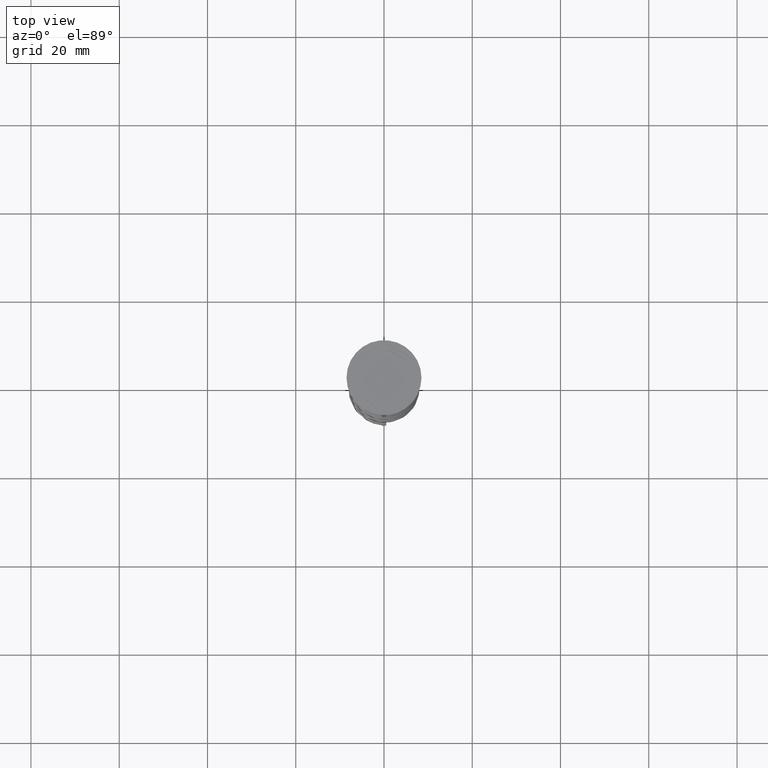
[diagram: clean part render]
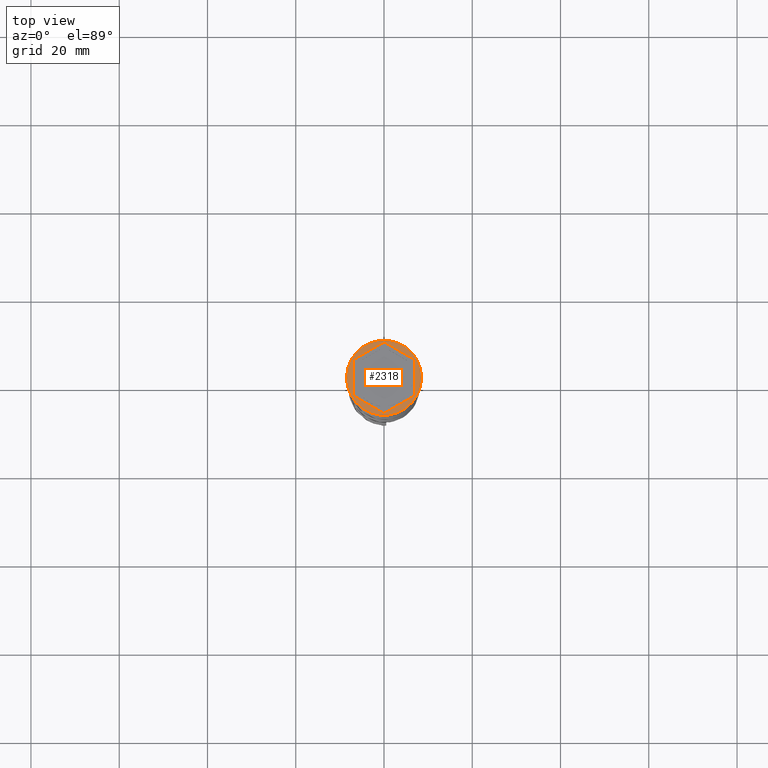
[diagram: same view with one face highlighted and labeled with its STEP entity id]
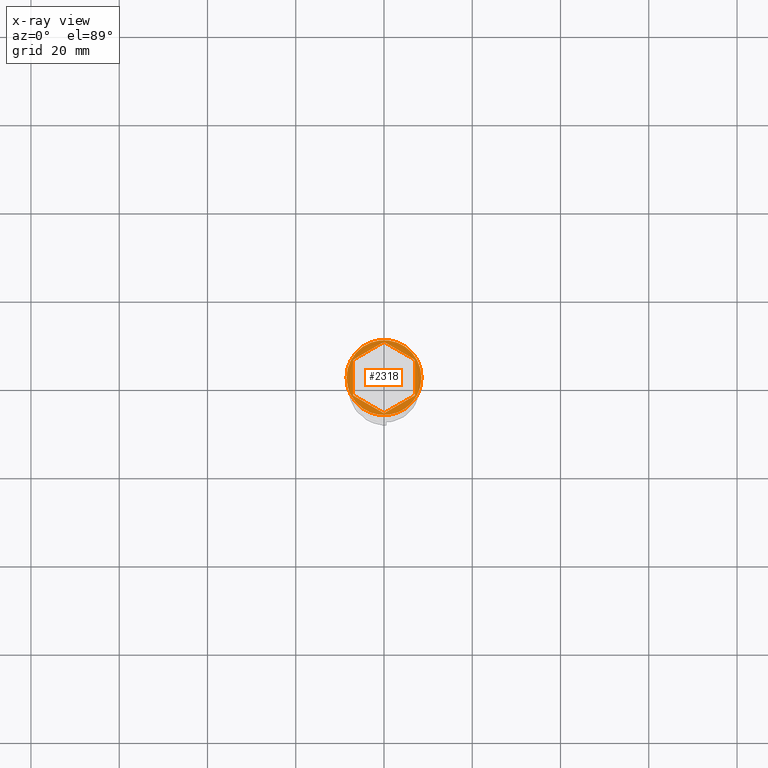
[diagram: x-ray of the same camera — body ghosted, the highlighted face saturated]
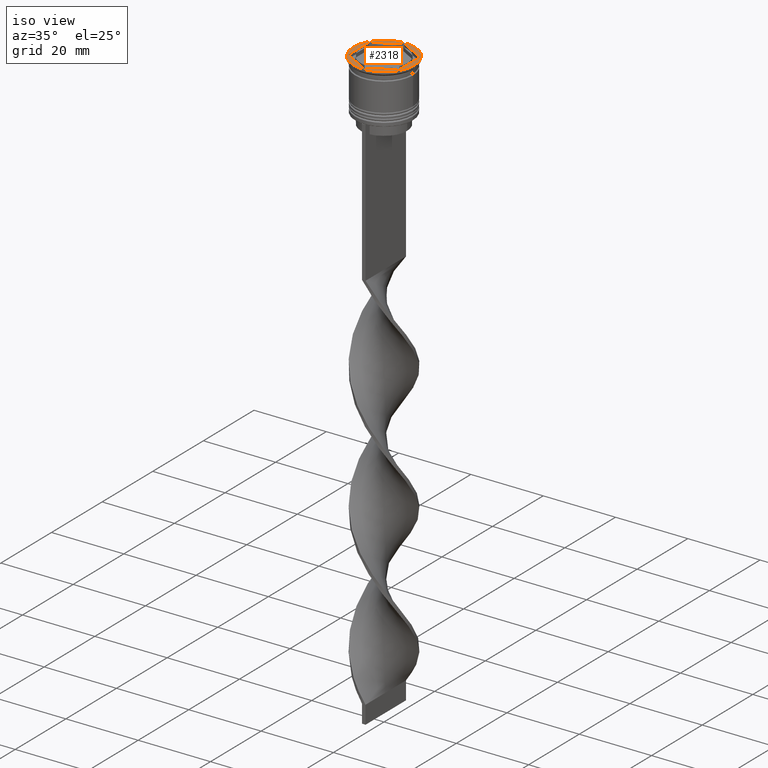
[diagram: same view with one face highlighted and labeled with its STEP entity id]
A machine part, top view. The second image highlights one B-rep face of the part: STEP entity #2318.
The next image is the same camera in x-ray: the body ghosted, the highlighted face saturated — about 0% of this face is hidden behind the body in this view.
A second angle (iso view) of the same face is appended — the face is thin or edge-on in the first view.
In plain terms, the highlighted planar face has unit normal (0, -0, 1).
Its self-contained STEP definition (entity closure, byte-faithful):
#3 = CARTESIAN_POINT ( 'NONE',  ( 7.000000000000000888, 4.041451884327382338, 0.000000000000000000 ) ) ;
#114 = CARTESIAN_POINT ( 'NONE',  ( 2.174016704710901386E-15, -8.082903768654762899, 0.000000000000000000 ) ) ;
#164 = VERTEX_POINT ( 'NONE', #2694 ) ;
#213 = CARTESIAN_POINT ( 'NONE',  ( 7.000000000000000888, 4.041451884327382338, 0.000000000000000000 ) ) ;
#224 = LINE ( 'NONE', #2823, #886 ) ;
#236 = DIRECTION ( 'NONE',  ( -0.000000000000000000, -0.000000000000000000, 1.000000000000000000 ) ) ;
#386 = DIRECTION ( 'NONE',  ( 1.000000000000000000, 0.000000000000000000, 0.000000000000000000 ) ) ;
#391 = LINE ( 'NONE', #2416, #3117 ) ;
#422 = FACE_BOUND ( 'NONE', #1586, .T. ) ;
#462 = AXIS2_PLACEMENT_3D ( 'NONE', #2736, #1571, #386 ) ;
#609 = VERTEX_POINT ( 'NONE', #3046 ) ;
#636 = EDGE_LOOP ( 'NONE', ( #3606, #2610 ) ) ;
#725 = PLANE ( 'NONE',  #462 ) ;
#766 = VERTEX_POINT ( 'NONE', #2159 ) ;
#777 = CARTESIAN_POINT ( 'NONE',  ( 0.000000000000000000, 0.000000000000000000, 0.000000000000000000 ) ) ;
#841 = ORIENTED_EDGE ( 'NONE', *, *, #1210, .F. ) ;
#851 = ORIENTED_EDGE ( 'NONE', *, *, #2251, .F. ) ;
#886 = VECTOR ( 'NONE', #1072, 1000.000000000000000 ) ;
#970 = EDGE_CURVE ( 'NONE', #2560, #164, #391, .T. ) ;
#1064 = LINE ( 'NONE', #2249, #2096 ) ;
#1072 = DIRECTION ( 'NONE',  ( 0.000000000000000000, -1.000000000000000000, 0.000000000000000000 ) ) ;
#1209 = EDGE_CURVE ( 'NONE', #2612, #2560, #3685, .T. ) ;
#1210 = EDGE_CURVE ( 'NONE', #2594, #1446, #1064, .T. ) ;
#1271 = FACE_OUTER_BOUND ( 'NONE', #636, .T. ) ;
#1337 = DIRECTION ( 'NONE',  ( -0.000000000000000000, -0.000000000000000000, 1.000000000000000000 ) ) ;
#1387 = DIRECTION ( 'NONE',  ( 0.8660254037844387076, -0.4999999999999997224, 0.000000000000000000 ) ) ;
#1418 = VERTEX_POINT ( 'NONE', #2458 ) ;
#1446 = VERTEX_POINT ( 'NONE', #114 ) ;
#1454 = DIRECTION ( 'NONE',  ( 0.8660254037844384856, 0.5000000000000001110, 0.000000000000000000 ) ) ;
#1496 = VECTOR ( 'NONE', #2555, 1000.000000000000000 ) ;
#1571 = DIRECTION ( 'NONE',  ( 0.000000000000000000, -0.000000000000000000, 1.000000000000000000 ) ) ;
#1586 = EDGE_LOOP ( 'NONE', ( #2934, #3582, #2429, #841, #851, #3719 ) ) ;
#1683 = CIRCLE ( 'NONE', #2098, 8.500000000000000000 ) ;
#1701 = EDGE_CURVE ( 'NONE', #609, #766, #1683, .T. ) ;
#1877 = EDGE_CURVE ( 'NONE', #1446, #1418, #2031, .T. ) ;
#2031 = LINE ( 'NONE', #2320, #3429 ) ;
#2041 = VECTOR ( 'NONE', #3662, 1000.000000000000114 ) ;
#2096 = VECTOR ( 'NONE', #1387, 1000.000000000000114 ) ;
#2098 = AXIS2_PLACEMENT_3D ( 'NONE', #777, #1337, #2208 ) ;
#2159 = CARTESIAN_POINT ( 'NONE',  ( -8.500000000000000000, 1.040949779275250140E-15, 0.000000000000000000 ) ) ;
#2208 = DIRECTION ( 'NONE',  ( 1.000000000000000000, 0.000000000000000000, 0.000000000000000000 ) ) ;
#2246 = CARTESIAN_POINT ( 'NONE',  ( 7.000000000000000000, -4.041451884327381450, 0.000000000000000000 ) ) ;
#2249 = CARTESIAN_POINT ( 'NONE',  ( -7.000000000000000888, -4.041451884327381450, 0.000000000000000000 ) ) ;
#2251 = EDGE_CURVE ( 'NONE', #164, #2594, #224, .T. ) ;
#2284 = CIRCLE ( 'NONE', #2391, 8.500000000000000000 ) ;
#2318 = ADVANCED_FACE ( 'NONE', ( #422, #1271 ), #725, .T. ) ;
#2320 = CARTESIAN_POINT ( 'NONE',  ( 2.174016704710901386E-15, -8.082903768654762899, 0.000000000000000000 ) ) ;
#2391 = AXIS2_PLACEMENT_3D ( 'NONE', #3057, #236, #2545 ) ;
#2416 = CARTESIAN_POINT ( 'NONE',  ( 0.000000000000000000, 8.082903768654762899, 0.000000000000000000 ) ) ;
#2429 = ORIENTED_EDGE ( 'NONE', *, *, #1877, .F. ) ;
#2458 = CARTESIAN_POINT ( 'NONE',  ( 7.000000000000000000, -4.041451884327381450, 0.000000000000000000 ) ) ;
#2545 = DIRECTION ( 'NONE',  ( 1.000000000000000000, 0.000000000000000000, 0.000000000000000000 ) ) ;
#2555 = DIRECTION ( 'NONE',  ( 1.073081856240827703E-16, 1.000000000000000000, 0.000000000000000000 ) ) ;
#2560 = VERTEX_POINT ( 'NONE', #3153 ) ;
#2594 = VERTEX_POINT ( 'NONE', #3741 ) ;
#2610 = ORIENTED_EDGE ( 'NONE', *, *, #2659, .T. ) ;
#2612 = VERTEX_POINT ( 'NONE', #3 ) ;
#2659 = EDGE_CURVE ( 'NONE', #766, #609, #2284, .T. ) ;
#2694 = CARTESIAN_POINT ( 'NONE',  ( -7.000000000000000888, 4.041451884327381450, 0.000000000000000000 ) ) ;
#2736 = CARTESIAN_POINT ( 'NONE',  ( 0.000000000000000000, 0.000000000000000000, 0.000000000000000000 ) ) ;
#2823 = CARTESIAN_POINT ( 'NONE',  ( -7.000000000000000888, 4.041451884327381450, 0.000000000000000000 ) ) ;
#2913 = EDGE_CURVE ( 'NONE', #1418, #2612, #3659, .T. ) ;
#2934 = ORIENTED_EDGE ( 'NONE', *, *, #1209, .F. ) ;
#3046 = CARTESIAN_POINT ( 'NONE',  ( 8.500000000000000000, 0.000000000000000000, 0.000000000000000000 ) ) ;
#3057 = CARTESIAN_POINT ( 'NONE',  ( 0.000000000000000000, 0.000000000000000000, 0.000000000000000000 ) ) ;
#3117 = VECTOR ( 'NONE', #3573, 1000.000000000000114 ) ;
#3153 = CARTESIAN_POINT ( 'NONE',  ( 0.000000000000000000, 8.082903768654762899, 0.000000000000000000 ) ) ;
#3429 = VECTOR ( 'NONE', #1454, 1000.000000000000227 ) ;
#3573 = DIRECTION ( 'NONE',  ( -0.8660254037844385966, -0.4999999999999999445, 0.000000000000000000 ) ) ;
#3582 = ORIENTED_EDGE ( 'NONE', *, *, #2913, .F. ) ;
#3606 = ORIENTED_EDGE ( 'NONE', *, *, #1701, .T. ) ;
#3659 = LINE ( 'NONE', #2246, #1496 ) ;
#3662 = DIRECTION ( 'NONE',  ( -0.8660254037844387076, 0.4999999999999998890, 0.000000000000000000 ) ) ;
#3685 = LINE ( 'NONE', #213, #2041 ) ;
#3719 = ORIENTED_EDGE ( 'NONE', *, *, #970, .F. ) ;
#3741 = CARTESIAN_POINT ( 'NONE',  ( -7.000000000000000888, -4.041451884327381450, 0.000000000000000000 ) ) ;